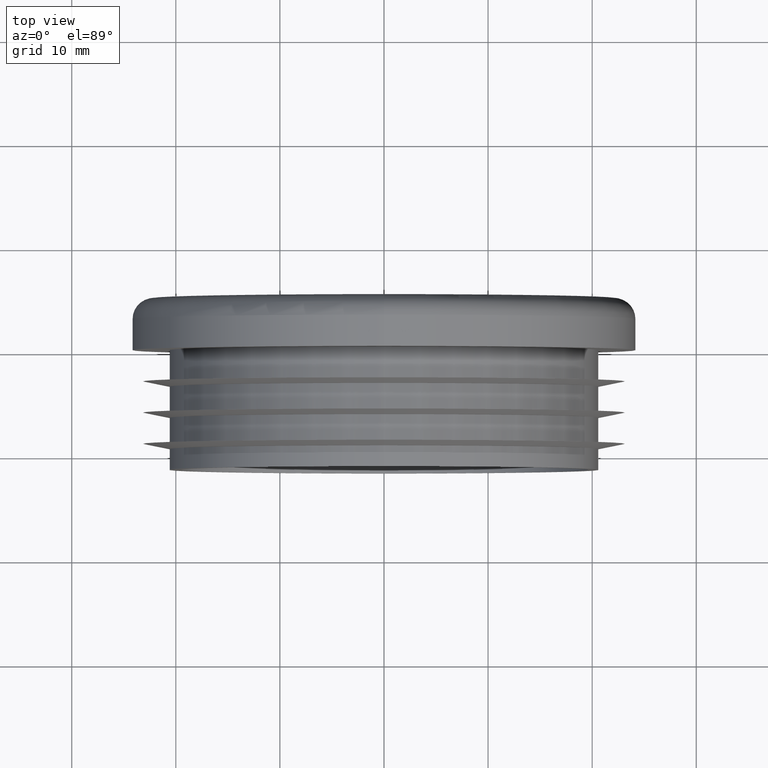
[diagram: clean part render]
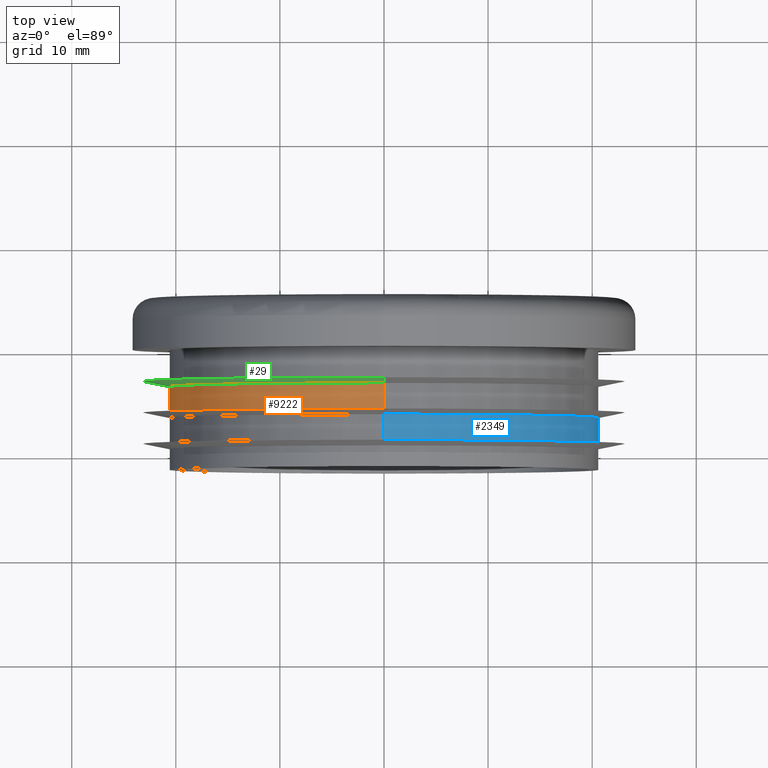
[diagram: same view with three faces highlighted in distinct colors, each labeled with its STEP entity id]
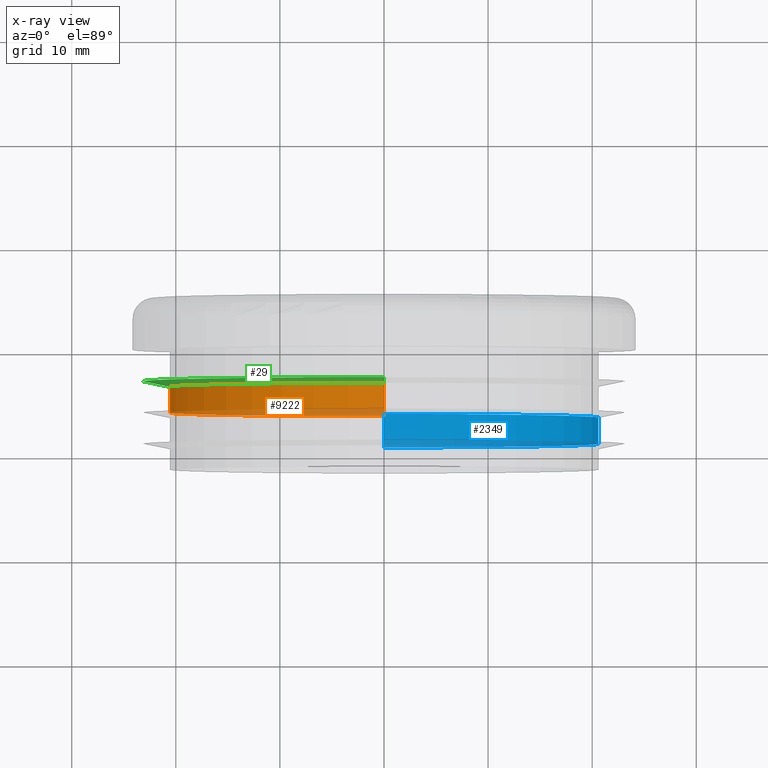
[diagram: x-ray of the same camera — body ghosted, the three highlighted faces saturated]
A machine part, top view with three faces highlighted in distinct colors.
The next image is the same camera in x-ray (body ghosted, the three faces saturated) — at least one of them is partly hidden behind the body in this view.
Their STEP definitions:

[orange] entity #9222 — the highlighted cylindrical surface (partial cylindrical patch) has radius 20.65 mm, axis along (-0, 1, -0).
#106 = DIRECTION ( 'NONE',  ( -0.0000000000000000000, 1.000000000000000000, -0.0000000000000000000 ) ) ;
#266 = CIRCLE ( 'NONE', #4237, 20.64999999999999900 ) ;
#546 = EDGE_CURVE ( 'NONE', #938, #3880, #9214, .T. ) ;
#938 = VERTEX_POINT ( 'NONE', #6375 ) ;
#1079 = CARTESIAN_POINT ( 'NONE',  ( 2.528895640239284100E-015, -3.500000000000000900, -20.64999999999999900 ) ) ;
#1175 = CARTESIAN_POINT ( 'NONE',  ( 2.528895640239284100E-015, -11.50000000000000000, -20.64999999999999900 ) ) ;
#1289 = VERTEX_POINT ( 'NONE', #1309 ) ;
#1309 = CARTESIAN_POINT ( 'NONE',  ( 0.0000000000000000000, -3.500000000000000900, 20.64999999999999900 ) ) ;
#1830 = DIRECTION ( 'NONE',  ( -0.0000000000000000000, 1.000000000000000000, -0.0000000000000000000 ) ) ;
#2366 = VECTOR ( 'NONE', #1830, 1000.000000000000000 ) ;
#2697 = ORIENTED_EDGE ( 'NONE', *, *, #546, .F. ) ;
#2858 = VECTOR ( 'NONE', #8467, 1000.000000000000000 ) ;
#2945 = EDGE_CURVE ( 'NONE', #5315, #938, #9180, .T. ) ;
#2948 = EDGE_LOOP ( 'NONE', ( #2697, #8581, #3538, #5984 ) ) ;
#3113 = LINE ( 'NONE', #7150, #2858 ) ;
#3119 = CARTESIAN_POINT ( 'NONE',  ( 0.0000000000000000000, -11.50000000000000000, 0.0000000000000000000 ) ) ;
#3329 = AXIS2_PLACEMENT_3D ( 'NONE', #3119, #3872, #5331 ) ;
#3538 = ORIENTED_EDGE ( 'NONE', *, *, #5661, .T. ) ;
#3545 = DIRECTION ( 'NONE',  ( 0.0000000000000000000, -1.000000000000000000, 0.0000000000000000000 ) ) ;
#3872 = DIRECTION ( 'NONE',  ( -0.0000000000000000000, 1.000000000000000000, -0.0000000000000000000 ) ) ;
#3880 = VERTEX_POINT ( 'NONE', #1079 ) ;
#4237 = AXIS2_PLACEMENT_3D ( 'NONE', #4600, #106, #5350 ) ;
#4600 = CARTESIAN_POINT ( 'NONE',  ( 0.0000000000000000000, -3.500000000000000900, 0.0000000000000000000 ) ) ;
#5010 = FACE_OUTER_BOUND ( 'NONE', #2948, .T. ) ;
#5294 = CARTESIAN_POINT ( 'NONE',  ( 0.0000000000000000000, -5.999999999999999100, 20.64999999999999900 ) ) ;
#5315 = VERTEX_POINT ( 'NONE', #5294 ) ;
#5331 = DIRECTION ( 'NONE',  ( 0.0000000000000000000, 0.0000000000000000000, 1.000000000000000000 ) ) ;
#5350 = DIRECTION ( 'NONE',  ( 0.0000000000000000000, 0.0000000000000000000, 1.000000000000000000 ) ) ;
#5661 = EDGE_CURVE ( 'NONE', #5315, #1289, #3113, .T. ) ;
#5722 = DIRECTION ( 'NONE',  ( 0.0000000000000000000, 0.0000000000000000000, -1.000000000000000000 ) ) ;
#5984 = ORIENTED_EDGE ( 'NONE', *, *, #7553, .F. ) ;
#6375 = CARTESIAN_POINT ( 'NONE',  ( 2.528895640239284100E-015, -5.999999999999999100, -20.64999999999999900 ) ) ;
#6717 = CYLINDRICAL_SURFACE ( 'NONE', #3329, 20.64999999999999900 ) ;
#7150 = CARTESIAN_POINT ( 'NONE',  ( 0.0000000000000000000, -11.50000000000000000, 20.64999999999999900 ) ) ;
#7553 = EDGE_CURVE ( 'NONE', #3880, #1289, #266, .T. ) ;
#7861 = CARTESIAN_POINT ( 'NONE',  ( 0.0000000000000000000, -5.999999999999999100, 0.0000000000000000000 ) ) ;
#8412 = AXIS2_PLACEMENT_3D ( 'NONE', #7861, #3545, #5722 ) ;
#8467 = DIRECTION ( 'NONE',  ( -0.0000000000000000000, 1.000000000000000000, -0.0000000000000000000 ) ) ;
#8581 = ORIENTED_EDGE ( 'NONE', *, *, #2945, .F. ) ;
#9180 = CIRCLE ( 'NONE', #8412, 20.64999999999999900 ) ;
#9214 = LINE ( 'NONE', #1175, #2366 ) ;
#9222 = ADVANCED_FACE ( 'NONE', ( #5010 ), #6717, .T. ) ;

[blue] entity #2349 — the highlighted cylindrical surface (partial cylindrical patch) has radius 20.65 mm, axis along (-0, 1, -0).
#662 = DIRECTION ( 'NONE',  ( 0.0000000000000000000, 0.0000000000000000000, -1.000000000000000000 ) ) ;
#672 = DIRECTION ( 'NONE',  ( 0.0000000000000000000, -1.000000000000000000, 0.0000000000000000000 ) ) ;
#675 = CARTESIAN_POINT ( 'NONE',  ( 0.0000000000000000000, -9.000000000000000000, 0.0000000000000000000 ) ) ;
#1055 = VECTOR ( 'NONE', #3005, 1000.000000000000000 ) ;
#1271 = LINE ( 'NONE', #7683, #5018 ) ;
#1457 = CARTESIAN_POINT ( 'NONE',  ( 0.0000000000000000000, -9.000000000000000000, 20.64999999999999900 ) ) ;
#1510 = VERTEX_POINT ( 'NONE', #4282 ) ;
#1636 = EDGE_CURVE ( 'NONE', #1956, #5636, #3046, .T. ) ;
#1798 = DIRECTION ( 'NONE',  ( -0.0000000000000000000, 1.000000000000000000, -0.0000000000000000000 ) ) ;
#1887 = ORIENTED_EDGE ( 'NONE', *, *, #2112, .F. ) ;
#1956 = VERTEX_POINT ( 'NONE', #1457 ) ;
#2006 = DIRECTION ( 'NONE',  ( -0.0000000000000000000, 1.000000000000000000, -0.0000000000000000000 ) ) ;
#2112 = EDGE_CURVE ( 'NONE', #1510, #1956, #3178, .T. ) ;
#2349 = ADVANCED_FACE ( 'NONE', ( #7375 ), #7167, .T. ) ;
#2489 = EDGE_CURVE ( 'NONE', #1510, #4834, #1271, .T. ) ;
#3005 = DIRECTION ( 'NONE',  ( -0.0000000000000000000, 1.000000000000000000, -0.0000000000000000000 ) ) ;
#3046 = LINE ( 'NONE', #3276, #1055 ) ;
#3178 = CIRCLE ( 'NONE', #3351, 20.64999999999999900 ) ;
#3276 = CARTESIAN_POINT ( 'NONE',  ( 0.0000000000000000000, -11.50000000000000000, 20.64999999999999900 ) ) ;
#3344 = ORIENTED_EDGE ( 'NONE', *, *, #3919, .F. ) ;
#3351 = AXIS2_PLACEMENT_3D ( 'NONE', #675, #672, #662 ) ;
#3640 = DIRECTION ( 'NONE',  ( -0.0000000000000000000, 1.000000000000000000, -0.0000000000000000000 ) ) ;
#3919 = EDGE_CURVE ( 'NONE', #5636, #4834, #7244, .T. ) ;
#4082 = ORIENTED_EDGE ( 'NONE', *, *, #2489, .T. ) ;
#4282 = CARTESIAN_POINT ( 'NONE',  ( 2.528895640239284100E-015, -9.000000000000000000, -20.64999999999999900 ) ) ;
#4300 = CARTESIAN_POINT ( 'NONE',  ( 2.528895640239284100E-015, -6.500000000000000900, -20.64999999999999900 ) ) ;
#4834 = VERTEX_POINT ( 'NONE', #4300 ) ;
#5018 = VECTOR ( 'NONE', #1798, 1000.000000000000000 ) ;
#5636 = VERTEX_POINT ( 'NONE', #5719 ) ;
#5719 = CARTESIAN_POINT ( 'NONE',  ( 0.0000000000000000000, -6.500000000000000900, 20.64999999999999900 ) ) ;
#6472 = CARTESIAN_POINT ( 'NONE',  ( 0.0000000000000000000, -6.500000000000000900, 0.0000000000000000000 ) ) ;
#7167 = CYLINDRICAL_SURFACE ( 'NONE', #8548, 20.64999999999999900 ) ;
#7174 = DIRECTION ( 'NONE',  ( 0.0000000000000000000, 0.0000000000000000000, 1.000000000000000000 ) ) ;
#7244 = CIRCLE ( 'NONE', #8087, 20.64999999999999900 ) ;
#7375 = FACE_OUTER_BOUND ( 'NONE', #7524, .T. ) ;
#7524 = EDGE_LOOP ( 'NONE', ( #1887, #4082, #3344, #7651 ) ) ;
#7651 = ORIENTED_EDGE ( 'NONE', *, *, #1636, .F. ) ;
#7683 = CARTESIAN_POINT ( 'NONE',  ( 2.528895640239284100E-015, -11.50000000000000000, -20.64999999999999900 ) ) ;
#7945 = CARTESIAN_POINT ( 'NONE',  ( 0.0000000000000000000, -11.50000000000000000, 0.0000000000000000000 ) ) ;
#8087 = AXIS2_PLACEMENT_3D ( 'NONE', #6472, #2006, #7174 ) ;
#8548 = AXIS2_PLACEMENT_3D ( 'NONE', #7945, #3640, #8583 ) ;
#8583 = DIRECTION ( 'NONE',  ( 0.0000000000000000000, 0.0000000000000000000, 1.000000000000000000 ) ) ;

[green] entity #29 — the highlighted conical surface has half-angle 78.69 deg.
#29 = ADVANCED_FACE ( 'NONE', ( #4242 ), #4027, .T. ) ;
#106 = DIRECTION ( 'NONE',  ( -0.0000000000000000000, 1.000000000000000000, -0.0000000000000000000 ) ) ;
#266 = CIRCLE ( 'NONE', #4237, 20.64999999999999900 ) ;
#1079 = CARTESIAN_POINT ( 'NONE',  ( 2.528895640239284100E-015, -3.500000000000000900, -20.64999999999999900 ) ) ;
#1289 = VERTEX_POINT ( 'NONE', #1309 ) ;
#1309 = CARTESIAN_POINT ( 'NONE',  ( 0.0000000000000000000, -3.500000000000000900, 20.64999999999999900 ) ) ;
#1587 = EDGE_CURVE ( 'NONE', #5041, #5748, #5255, .T. ) ;
#2411 = DIRECTION ( 'NONE',  ( 1.200864985790634400E-016, 0.1961161351381842400, -0.9805806756909202200 ) ) ;
#2787 = EDGE_CURVE ( 'NONE', #1289, #5748, #5820, .T. ) ;
#3372 = DIRECTION ( 'NONE',  ( 0.0000000000000000000, 0.0000000000000000000, 1.000000000000000000 ) ) ;
#3386 = DIRECTION ( 'NONE',  ( -0.0000000000000000000, 1.000000000000000000, -0.0000000000000000000 ) ) ;
#3399 = CARTESIAN_POINT ( 'NONE',  ( 0.0000000000000000000, -3.000000000000000400, 0.0000000000000000000 ) ) ;
#3515 = AXIS2_PLACEMENT_3D ( 'NONE', #3399, #3386, #3372 ) ;
#3858 = CARTESIAN_POINT ( 'NONE',  ( 2.835057340026122400E-015, -3.000000000000000400, -23.14999999999999900 ) ) ;
#3880 = VERTEX_POINT ( 'NONE', #1079 ) ;
#4027 = CONICAL_SURFACE ( 'NONE', #8504, 20.64999999999999900, 1.373400766945015700 ) ;
#4174 = ORIENTED_EDGE ( 'NONE', *, *, #1587, .F. ) ;
#4237 = AXIS2_PLACEMENT_3D ( 'NONE', #4600, #106, #5350 ) ;
#4242 = FACE_OUTER_BOUND ( 'NONE', #4930, .T. ) ;
#4246 = VECTOR ( 'NONE', #2411, 999.9999999999998900 ) ;
#4600 = CARTESIAN_POINT ( 'NONE',  ( 0.0000000000000000000, -3.500000000000000900, 0.0000000000000000000 ) ) ;
#4687 = CARTESIAN_POINT ( 'NONE',  ( 0.0000000000000000000, -3.000000000000000400, 23.14999999999999900 ) ) ;
#4930 = EDGE_LOOP ( 'NONE', ( #7660, #6452, #8320, #4174 ) ) ;
#5041 = VERTEX_POINT ( 'NONE', #3858 ) ;
#5255 = CIRCLE ( 'NONE', #3515, 23.14999999999999900 ) ;
#5350 = DIRECTION ( 'NONE',  ( 0.0000000000000000000, 0.0000000000000000000, 1.000000000000000000 ) ) ;
#5748 = VERTEX_POINT ( 'NONE', #4687 ) ;
#5820 = LINE ( 'NONE', #6666, #6992 ) ;
#6063 = CARTESIAN_POINT ( 'NONE',  ( 0.0000000000000000000, -3.500000000000000900, 0.0000000000000000000 ) ) ;
#6113 = DIRECTION ( 'NONE',  ( 0.0000000000000000000, 0.0000000000000000000, 1.000000000000000000 ) ) ;
#6262 = DIRECTION ( 'NONE',  ( -0.0000000000000000000, 1.000000000000000000, -0.0000000000000000000 ) ) ;
#6452 = ORIENTED_EDGE ( 'NONE', *, *, #7553, .T. ) ;
#6569 = DIRECTION ( 'NONE',  ( 0.0000000000000000000, 0.1961161351381842400, 0.9805806756909202200 ) ) ;
#6666 = CARTESIAN_POINT ( 'NONE',  ( 0.0000000000000000000, -3.500000000000000900, 20.64999999999999900 ) ) ;
#6992 = VECTOR ( 'NONE', #6569, 999.9999999999998900 ) ;
#7529 = CARTESIAN_POINT ( 'NONE',  ( 2.528895640239284100E-015, -3.500000000000000900, -20.64999999999999900 ) ) ;
#7553 = EDGE_CURVE ( 'NONE', #3880, #1289, #266, .T. ) ;
#7604 = EDGE_CURVE ( 'NONE', #3880, #5041, #7827, .T. ) ;
#7660 = ORIENTED_EDGE ( 'NONE', *, *, #7604, .F. ) ;
#7827 = LINE ( 'NONE', #7529, #4246 ) ;
#8320 = ORIENTED_EDGE ( 'NONE', *, *, #2787, .T. ) ;
#8504 = AXIS2_PLACEMENT_3D ( 'NONE', #6063, #6262, #6113 ) ;